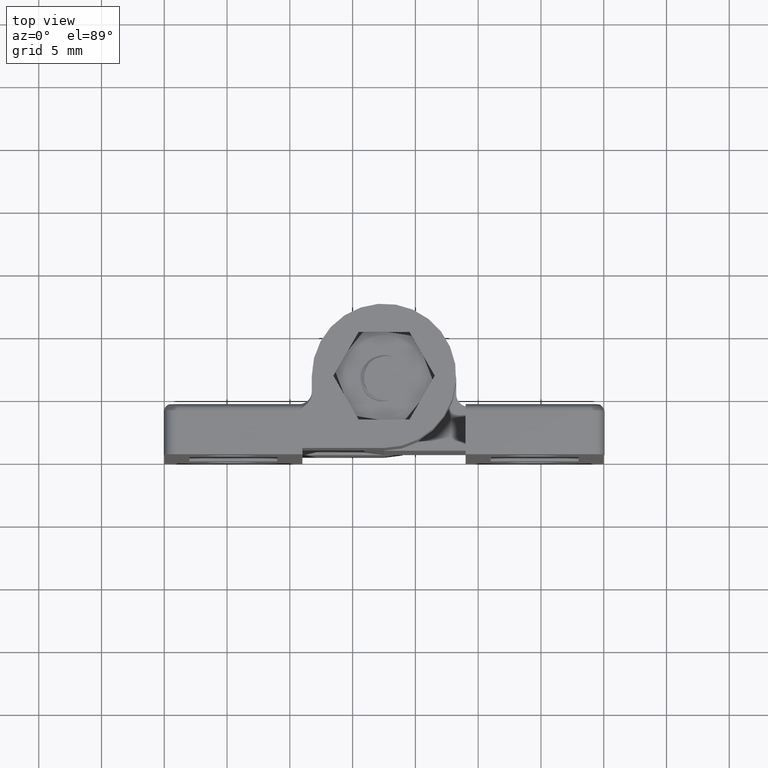
[diagram: clean part render]
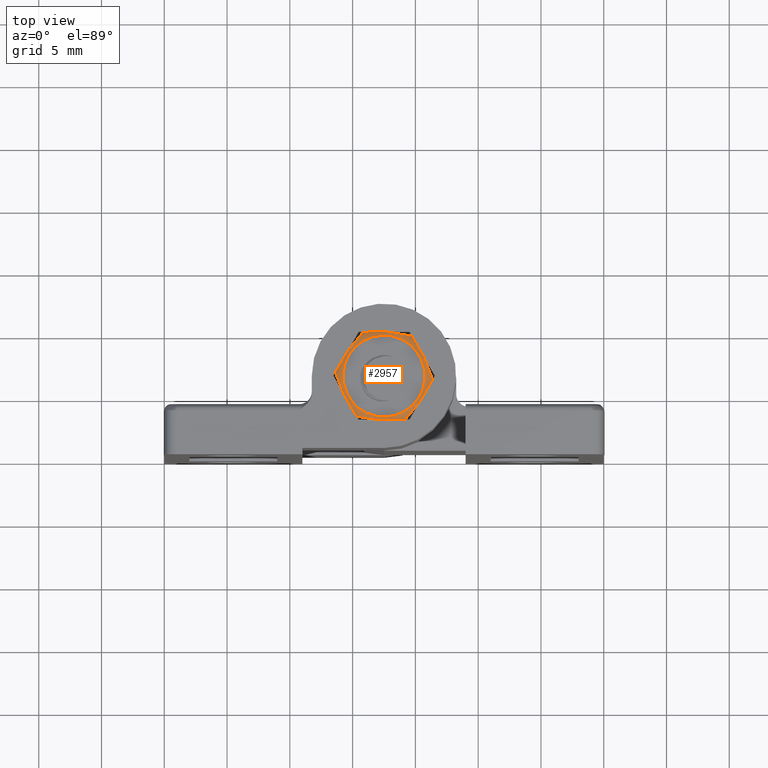
[diagram: same view with one face highlighted and labeled with its STEP entity id]
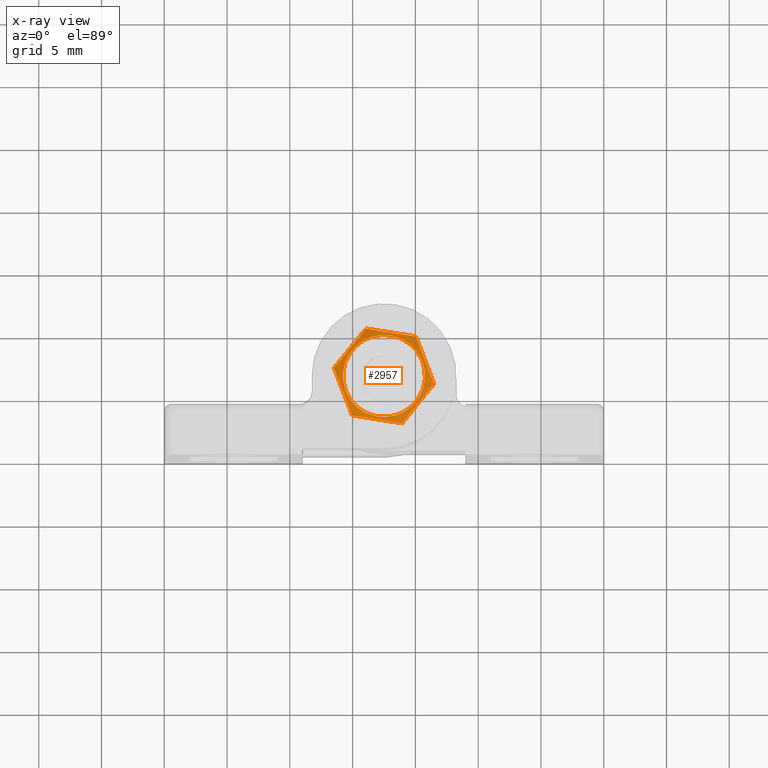
[diagram: x-ray of the same camera — body ghosted, the highlighted face saturated]
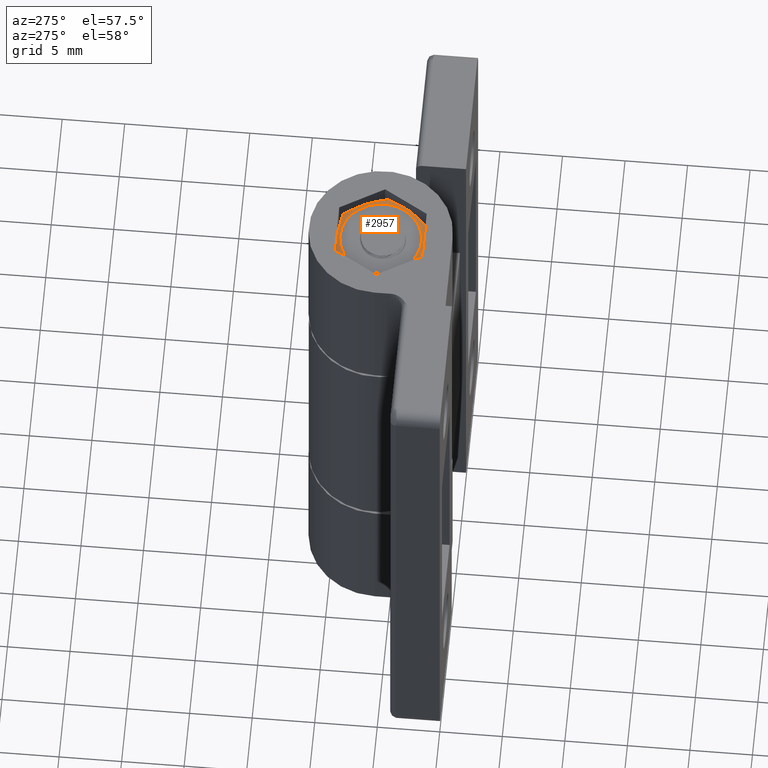
[diagram: same view with one face highlighted and labeled with its STEP entity id]
A machine part, top view. The second image highlights one B-rep face of the part: STEP entity #2957.
The next image is the same camera in x-ray: the body ghosted, the highlighted face saturated — about 0% of this face is hidden behind the body in this view.
A second angle (auxiliary view) of the same face is appended — the face is thin or edge-on in the first view.
In plain terms, the highlighted face is a freeform B-spline surface patch.
Its self-contained STEP definition (entity closure, byte-faithful):
#53=(
BOUNDED_SURFACE()
B_SPLINE_SURFACE(5,2,((#5416,#5417,#5418,#5419,#5420,#5421,#5422,#5423,
#5424),(#5425,#5426,#5427,#5428,#5429,#5430,#5431,#5432,#5433),(#5434,#5435,
#5436,#5437,#5438,#5439,#5440,#5441,#5442),(#5443,#5444,#5445,#5446,#5447,
#5448,#5449,#5450,#5451),(#5452,#5453,#5454,#5455,#5456,#5457,#5458,#5459,
#5460),(#5461,#5462,#5463,#5464,#5465,#5466,#5467,#5468,#5469),(#5470,#5471,
#5472,#5473,#5474,#5475,#5476,#5477,#5478),(#5479,#5480,#5481,#5482,#5483,
#5484,#5485,#5486,#5487),(#5488,#5489,#5490,#5491,#5492,#5493,#5494,#5495,
#5496),(#5497,#5498,#5499,#5500,#5501,#5502,#5503,#5504,#5505),(#5506,#5507,
#5508,#5509,#5510,#5511,#5512,#5513,#5514),(#5515,#5516,#5517,#5518,#5519,
#5520,#5521,#5522,#5523),(#5524,#5525,#5526,#5527,#5528,#5529,#5530,#5531,
#5532),(#5533,#5534,#5535,#5536,#5537,#5538,#5539,#5540,#5541),(#5542,#5543,
#5544,#5545,#5546,#5547,#5548,#5549,#5550)),.UNSPECIFIED.,.F.,.T.,.F.)
B_SPLINE_SURFACE_WITH_KNOTS((6,1,1,1,1,1,1,1,1,1,6),(3,2,2,2,3),(-1.,-0.9,
-0.8,-0.7,-0.6,-0.5,-0.4,-0.3,-0.2,-0.1,0.),(0.,1.5707963267949,3.14159265358979,
4.71238898038469,6.28318530717959),.UNSPECIFIED.)
GEOMETRIC_REPRESENTATION_ITEM()
RATIONAL_B_SPLINE_SURFACE(((1.,0.707106781186548,1.,0.707106781186548,1.,
0.707106781186548,1.,0.707106781186548,1.),(1.,0.707106781186548,1.,0.707106781186548,
1.,0.707106781186548,1.,0.707106781186548,1.),(1.,0.707106781186548,1.,
0.707106781186548,1.,0.707106781186548,1.,0.707106781186548,1.),(1.,0.707106781186548,
1.,0.707106781186548,1.,0.707106781186548,1.,0.707106781186548,1.),(1.,
0.707106781186548,1.,0.707106781186548,1.,0.707106781186548,1.,0.707106781186548,
1.),(1.,0.707106781186548,1.,0.707106781186548,1.,0.707106781186548,1.,
0.707106781186548,1.),(1.,0.707106781186548,1.,0.707106781186548,1.,0.707106781186548,
1.,0.707106781186548,1.),(1.,0.707106781186548,1.,0.707106781186548,1.,
0.707106781186548,1.,0.707106781186548,1.),(1.,0.707106781186548,1.,0.707106781186548,
1.,0.707106781186548,1.,0.707106781186548,1.),(1.,0.707106781186548,1.,
0.707106781186548,1.,0.707106781186548,1.,0.707106781186548,1.),(1.,0.707106781186548,
1.,0.707106781186548,1.,0.707106781186548,1.,0.707106781186548,1.),(1.,
0.707106781186548,1.,0.707106781186548,1.,0.707106781186548,1.,0.707106781186548,
1.),(1.,0.707106781186548,1.,0.707106781186548,1.,0.707106781186548,1.,
0.707106781186548,1.),(1.,0.707106781186548,1.,0.707106781186548,1.,0.707106781186548,
1.,0.707106781186548,1.),(1.,0.707106781186548,1.,0.707106781186548,1.,
0.707106781186548,1.,0.707106781186548,1.)))
REPRESENTATION_ITEM('')
SURFACE()
);
#83=B_SPLINE_CURVE_WITH_KNOTS('',3,(#5553,#5554,#5555,#5556,#5557,#5558,
#5559,#5560,#5561,#5562,#5563,#5564,#5565,#5566,#5567,#5568,#5569,#5570,
#5571,#5572,#5573,#5574,#5575,#5576,#5577,#5578,#5579,#5580,#5581,#5582),
 .UNSPECIFIED.,.F.,.F.,(4,2,2,2,2,2,2,2,2,2,2,2,2,2,4),(0.,0.0361791631435404,
0.0980929846163724,0.152777524309883,0.183605464778221,0.194273376338994,
0.203453418399297,0.209802915825388,0.216089708122447,0.22496312148691,
0.240825909856213,0.278685831894341,0.358332120632533,0.39851212730678,
0.427015684371787),.UNSPECIFIED.);
#84=B_SPLINE_CURVE_WITH_KNOTS('',3,(#5584,#5585,#5586,#5587,#5588,#5589,
#5590,#5591,#5592,#5593,#5594,#5595,#5596,#5597,#5598,#5599,#5600,#5601,
#5602,#5603,#5604,#5605,#5606,#5607,#5608,#5609,#5610,#5611,#5612,#5613),
 .UNSPECIFIED.,.F.,.F.,(4,2,2,2,2,2,2,2,2,2,2,2,2,2,4),(0.,0.0178727517397638,
0.0407514137350155,0.103592241858238,0.127521075474464,0.142994426421951,
0.151004948513163,0.15607701922255,0.160717207491714,0.166526232355823,
0.177832672054814,0.201032813446925,0.240820314357573,0.269308622697375,
0.285641254036583),.UNSPECIFIED.);
#85=B_SPLINE_CURVE_WITH_KNOTS('',3,(#5615,#5616,#5617,#5618,#5619,#5620,
#5621,#5622,#5623,#5624,#5625,#5626,#5627,#5628,#5629,#5630,#5631,#5632,
#5633,#5634,#5635,#5636,#5637,#5638,#5639,#5640,#5641,#5642,#5643,#5644),
 .UNSPECIFIED.,.F.,.F.,(4,2,2,2,2,2,2,2,2,2,2,2,2,2,4),(0.,0.0177312333647388,
0.0403754027847921,0.102618306332989,0.132370027721276,0.145311478476328,
0.152003507958347,0.156346903101656,0.160435423545265,0.165784576177388,
0.177402287248613,0.202166904158735,0.254633195591348,0.282005430420028,
0.301284590656105),.UNSPECIFIED.);
#86=B_SPLINE_CURVE_WITH_KNOTS('',3,(#5646,#5647,#5648,#5649,#5650,#5651,
#5652,#5653,#5654,#5655,#5656,#5657,#5658,#5659,#5660,#5661,#5662,#5663,
#5664,#5665,#5666,#5667,#5668,#5669,#5670,#5671,#5672,#5673,#5674,#5675),
 .UNSPECIFIED.,.F.,.F.,(4,2,2,2,2,2,2,2,2,2,2,2,2,2,4),(0.,0.0361791631492198,
0.0980929846610639,0.152777524395749,0.183605464887145,0.19427337645574,
0.203453418522495,0.209802915953191,0.216089708254858,0.22496312162592,
0.240825910007207,0.278685832073751,0.358332120872144,0.398512127584175,
0.42701568467521),.UNSPECIFIED.);
#87=B_SPLINE_CURVE_WITH_KNOTS('',3,(#5677,#5678,#5679,#5680,#5681,#5682,
#5683,#5684,#5685,#5686,#5687,#5688,#5689,#5690,#5691,#5692,#5693,#5694,
#5695,#5696,#5697,#5698,#5699,#5700,#5701,#5702,#5703,#5704,#5705,#5706),
 .UNSPECIFIED.,.F.,.F.,(4,2,2,2,2,2,2,2,2,2,2,2,2,2,4),(0.,0.0178727517388598,
0.0407514137326139,0.103592241850037,0.127521075468826,0.142994426417439,
0.151004948509051,0.156077019218657,0.160717207487457,0.166526232350677,
0.177832672047503,0.201032813434876,0.240820314337352,0.269308622684778,
0.285641254026599),.UNSPECIFIED.);
#88=B_SPLINE_CURVE_WITH_KNOTS('',3,(#5707,#5708,#5709,#5710,#5711,#5712,
#5713,#5714,#5715,#5716,#5717,#5718,#5719,#5720,#5721,#5722,#5723,#5724,
#5725,#5726,#5727,#5728,#5729,#5730,#5731,#5732,#5733,#5734,#5735,#5736),
 .UNSPECIFIED.,.F.,.F.,(4,2,2,2,2,2,2,2,2,2,2,2,2,2,4),(0.,0.017731233365268,
0.0403754027861674,0.102618306337743,0.132370027724714,0.145311478479343,
0.152003507961199,0.156346903104606,0.16043542354912,0.165784576182606,
0.17740228725694,0.202166904173949,0.254633195620854,0.282005430449203,
0.301284590686286),.UNSPECIFIED.);
#89=B_SPLINE_CURVE_WITH_KNOTS('',3,(#5737,#5738,#5739,#5740),
 .UNSPECIFIED.,.F.,.F.,(4,4),(0.,1.),.UNSPECIFIED.);
#469=FACE_OUTER_BOUND('',#603,.T.);
#603=EDGE_LOOP('',(#2222,#2223,#2224,#2225,#2226,#2227,#2228,#2229,#2230));
#1026=CIRCLE('',#3111,3.26394940457377);
#1170=VERTEX_POINT('',#5414);
#1171=VERTEX_POINT('',#5551);
#1172=VERTEX_POINT('',#5552);
#1173=VERTEX_POINT('',#5583);
#1174=VERTEX_POINT('',#5614);
#1175=VERTEX_POINT('',#5645);
#1176=VERTEX_POINT('',#5676);
#1603=EDGE_CURVE('',#1170,#1170,#1026,.T.);
#1604=EDGE_CURVE('',#1171,#1172,#83,.T.);
#1605=EDGE_CURVE('',#1173,#1171,#84,.T.);
#1606=EDGE_CURVE('',#1174,#1173,#85,.T.);
#1607=EDGE_CURVE('',#1175,#1174,#86,.T.);
#1608=EDGE_CURVE('',#1176,#1175,#87,.T.);
#1609=EDGE_CURVE('',#1172,#1176,#88,.T.);
#1610=EDGE_CURVE('',#1170,#1172,#89,.T.);
#2222=ORIENTED_EDGE('',*,*,#1604,.F.);
#2223=ORIENTED_EDGE('',*,*,#1605,.F.);
#2224=ORIENTED_EDGE('',*,*,#1606,.F.);
#2225=ORIENTED_EDGE('',*,*,#1607,.F.);
#2226=ORIENTED_EDGE('',*,*,#1608,.F.);
#2227=ORIENTED_EDGE('',*,*,#1609,.F.);
#2228=ORIENTED_EDGE('',*,*,#1610,.F.);
#2229=ORIENTED_EDGE('',*,*,#1603,.F.);
#2230=ORIENTED_EDGE('',*,*,#1610,.T.);
#2957=ADVANCED_FACE('',(#469),#53,.F.);
#3111=AXIS2_PLACEMENT_3D('',#5415,#3478,#3479);
#3478=DIRECTION('center_axis',(-6.12323399573677E-17,-1.,0.));
#3479=DIRECTION('ref_axis',(1.,-6.12323399573677E-17,0.));
#5414=CARTESIAN_POINT('',(11.0139494045738,21.25,7.9));
#5415=CARTESIAN_POINT('Origin',(7.75,21.25,7.9));
#5416=CARTESIAN_POINT('Ctrl Pts',(11.7914518843274,21.6588882345793,7.9));
#5417=CARTESIAN_POINT('Ctrl Pts',(11.7914518843274,21.6588882345793,11.9414518843274));
#5418=CARTESIAN_POINT('Ctrl Pts',(7.75,21.6588882345793,11.9414518843274));
#5419=CARTESIAN_POINT('Ctrl Pts',(3.70854811567262,21.6588882345793,11.9414518843274));
#5420=CARTESIAN_POINT('Ctrl Pts',(3.70854811567262,21.6588882345793,7.9));
#5421=CARTESIAN_POINT('Ctrl Pts',(3.70854811567262,21.6588882345793,3.85854811567262));
#5422=CARTESIAN_POINT('Ctrl Pts',(7.75,21.6588882345793,3.85854811567262));
#5423=CARTESIAN_POINT('Ctrl Pts',(11.7914518843274,21.6588882345793,3.85854811567262));
#5424=CARTESIAN_POINT('Ctrl Pts',(11.7914518843274,21.6588882345793,7.9));
#5425=CARTESIAN_POINT('Ctrl Pts',(11.784398007902,21.6464300623584,7.9));
#5426=CARTESIAN_POINT('Ctrl Pts',(11.784398007902,21.6464300623584,11.934398007902));
#5427=CARTESIAN_POINT('Ctrl Pts',(7.75,21.6464300623584,11.934398007902));
#5428=CARTESIAN_POINT('Ctrl Pts',(3.715601992098,21.6464300623584,11.934398007902));
#5429=CARTESIAN_POINT('Ctrl Pts',(3.715601992098,21.6464300623584,7.9));
#5430=CARTESIAN_POINT('Ctrl Pts',(3.715601992098,21.6464300623584,3.865601992098));
#5431=CARTESIAN_POINT('Ctrl Pts',(7.75,21.6464300623584,3.865601992098));
#5432=CARTESIAN_POINT('Ctrl Pts',(11.784398007902,21.6464300623584,3.865601992098));
#5433=CARTESIAN_POINT('Ctrl Pts',(11.784398007902,21.6464300623584,7.9));
#5434=CARTESIAN_POINT('Ctrl Pts',(11.7695391136558,21.621892146089,7.9));
#5435=CARTESIAN_POINT('Ctrl Pts',(11.7695391136558,21.621892146089,11.9195391136558));
#5436=CARTESIAN_POINT('Ctrl Pts',(7.75,21.621892146089,11.9195391136558));
#5437=CARTESIAN_POINT('Ctrl Pts',(3.73046088634421,21.621892146089,11.9195391136558));
#5438=CARTESIAN_POINT('Ctrl Pts',(3.73046088634421,21.621892146089,7.9));
#5439=CARTESIAN_POINT('Ctrl Pts',(3.73046088634421,21.621892146089,3.88046088634421));
#5440=CARTESIAN_POINT('Ctrl Pts',(7.75,21.621892146089,3.88046088634421));
#5441=CARTESIAN_POINT('Ctrl Pts',(11.7695391136558,21.621892146089,3.88046088634421));
#5442=CARTESIAN_POINT('Ctrl Pts',(11.7695391136558,21.621892146089,7.9));
#5443=CARTESIAN_POINT('Ctrl Pts',(11.7449973683031,21.5862205460238,7.9));
#5444=CARTESIAN_POINT('Ctrl Pts',(11.7449973683031,21.5862205460238,11.8949973683031));
#5445=CARTESIAN_POINT('Ctrl Pts',(7.75,21.5862205460238,11.8949973683031));
#5446=CARTESIAN_POINT('Ctrl Pts',(3.7550026316969,21.5862205460238,11.8949973683031));
#5447=CARTESIAN_POINT('Ctrl Pts',(3.7550026316969,21.5862205460238,7.9));
#5448=CARTESIAN_POINT('Ctrl Pts',(3.7550026316969,21.5862205460238,3.90500263169691));
#5449=CARTESIAN_POINT('Ctrl Pts',(7.75,21.5862205460238,3.90500263169691));
#5450=CARTESIAN_POINT('Ctrl Pts',(11.7449973683031,21.5862205460238,3.90500263169691));
#5451=CARTESIAN_POINT('Ctrl Pts',(11.7449973683031,21.5862205460238,7.9));
#5452=CARTESIAN_POINT('Ctrl Pts',(11.7076939138227,21.5409664036936,7.9));
#5453=CARTESIAN_POINT('Ctrl Pts',(11.7076939138227,21.5409664036936,11.8576939138227));
#5454=CARTESIAN_POINT('Ctrl Pts',(7.75,21.5409664036936,11.8576939138227));
#5455=CARTESIAN_POINT('Ctrl Pts',(3.79230608617728,21.5409664036936,11.8576939138227));
#5456=CARTESIAN_POINT('Ctrl Pts',(3.79230608617727,21.5409664036936,7.9));
#5457=CARTESIAN_POINT('Ctrl Pts',(3.79230608617728,21.5409664036936,3.94230608617728));
#5458=CARTESIAN_POINT('Ctrl Pts',(7.75,21.5409664036936,3.94230608617728));
#5459=CARTESIAN_POINT('Ctrl Pts',(11.7076939138227,21.5409664036936,3.94230608617728));
#5460=CARTESIAN_POINT('Ctrl Pts',(11.7076939138227,21.5409664036936,7.9));
#5461=CARTESIAN_POINT('Ctrl Pts',(11.6529192580733,21.4885023809097,7.9));
#5462=CARTESIAN_POINT('Ctrl Pts',(11.6529192580733,21.4885023809097,11.8029192580733));
#5463=CARTESIAN_POINT('Ctrl Pts',(7.75,21.4885023809097,11.8029192580733));
#5464=CARTESIAN_POINT('Ctrl Pts',(3.84708074192671,21.4885023809097,11.8029192580733));
#5465=CARTESIAN_POINT('Ctrl Pts',(3.8470807419267,21.4885023809097,7.9));
#5466=CARTESIAN_POINT('Ctrl Pts',(3.84708074192671,21.4885023809097,3.99708074192671));
#5467=CARTESIAN_POINT('Ctrl Pts',(7.75,21.4885023809097,3.99708074192671));
#5468=CARTESIAN_POINT('Ctrl Pts',(11.6529192580733,21.4885023809097,3.99708074192671));
#5469=CARTESIAN_POINT('Ctrl Pts',(11.6529192580733,21.4885023809097,7.9));
#5470=CARTESIAN_POINT('Ctrl Pts',(11.5893031551431,21.440492716144,7.9));
#5471=CARTESIAN_POINT('Ctrl Pts',(11.5893031551431,21.440492716144,11.7393031551431));
#5472=CARTESIAN_POINT('Ctrl Pts',(7.75,21.440492716144,11.7393031551431));
#5473=CARTESIAN_POINT('Ctrl Pts',(3.91069684485689,21.440492716144,11.7393031551431));
#5474=CARTESIAN_POINT('Ctrl Pts',(3.91069684485689,21.440492716144,7.9));
#5475=CARTESIAN_POINT('Ctrl Pts',(3.91069684485689,21.440492716144,4.06069684485689));
#5476=CARTESIAN_POINT('Ctrl Pts',(7.75,21.440492716144,4.06069684485689));
#5477=CARTESIAN_POINT('Ctrl Pts',(11.5893031551431,21.440492716144,4.06069684485689));
#5478=CARTESIAN_POINT('Ctrl Pts',(11.5893031551431,21.440492716144,7.9));
#5479=CARTESIAN_POINT('Ctrl Pts',(11.5161733580858,21.3972760902157,7.9));
#5480=CARTESIAN_POINT('Ctrl Pts',(11.5161733580858,21.3972760902157,11.6661733580858));
#5481=CARTESIAN_POINT('Ctrl Pts',(7.75,21.3972760902157,11.6661733580858));
#5482=CARTESIAN_POINT('Ctrl Pts',(3.98382664191424,21.3972760902157,11.6661733580858));
#5483=CARTESIAN_POINT('Ctrl Pts',(3.98382664191424,21.3972760902157,7.9));
#5484=CARTESIAN_POINT('Ctrl Pts',(3.98382664191424,21.3972760902157,4.13382664191424));
#5485=CARTESIAN_POINT('Ctrl Pts',(7.75,21.3972760902157,4.13382664191424));
#5486=CARTESIAN_POINT('Ctrl Pts',(11.5161733580858,21.3972760902157,4.13382664191424));
#5487=CARTESIAN_POINT('Ctrl Pts',(11.5161733580858,21.3972760902157,7.9));
#5488=CARTESIAN_POINT('Ctrl Pts',(11.4332546478185,21.358991159648,7.9));
#5489=CARTESIAN_POINT('Ctrl Pts',(11.4332546478185,21.358991159648,11.5832546478185));
#5490=CARTESIAN_POINT('Ctrl Pts',(7.75,21.358991159648,11.5832546478185));
#5491=CARTESIAN_POINT('Ctrl Pts',(4.06674535218149,21.358991159648,11.5832546478185));
#5492=CARTESIAN_POINT('Ctrl Pts',(4.06674535218149,21.358991159648,7.9));
#5493=CARTESIAN_POINT('Ctrl Pts',(4.06674535218149,21.358991159648,4.21674535218149));
#5494=CARTESIAN_POINT('Ctrl Pts',(7.75,21.358991159648,4.21674535218149));
#5495=CARTESIAN_POINT('Ctrl Pts',(11.4332546478185,21.358991159648,4.21674535218149));
#5496=CARTESIAN_POINT('Ctrl Pts',(11.4332546478185,21.358991159648,7.9));
#5497=CARTESIAN_POINT('Ctrl Pts',(11.3410357044332,21.3253917253695,7.9));
#5498=CARTESIAN_POINT('Ctrl Pts',(11.3410357044332,21.3253917253695,11.4910357044332));
#5499=CARTESIAN_POINT('Ctrl Pts',(7.75,21.3253917253695,11.4910357044332));
#5500=CARTESIAN_POINT('Ctrl Pts',(4.15896429556675,21.3253917253695,11.4910357044332));
#5501=CARTESIAN_POINT('Ctrl Pts',(4.15896429556675,21.3253917253695,7.9));
#5502=CARTESIAN_POINT('Ctrl Pts',(4.15896429556675,21.3253917253695,4.30896429556675));
#5503=CARTESIAN_POINT('Ctrl Pts',(7.75,21.3253917253695,4.30896429556675));
#5504=CARTESIAN_POINT('Ctrl Pts',(11.3410357044332,21.3253917253695,4.30896429556675));
#5505=CARTESIAN_POINT('Ctrl Pts',(11.3410357044332,21.3253917253695,7.9));
#5506=CARTESIAN_POINT('Ctrl Pts',(11.2402615285082,21.2961024529773,7.9));
#5507=CARTESIAN_POINT('Ctrl Pts',(11.2402615285082,21.2961024529773,11.3902615285082));
#5508=CARTESIAN_POINT('Ctrl Pts',(7.75,21.2961024529773,11.3902615285082));
#5509=CARTESIAN_POINT('Ctrl Pts',(4.25973847149181,21.2961024529773,11.3902615285082));
#5510=CARTESIAN_POINT('Ctrl Pts',(4.25973847149181,21.2961024529773,7.9));
#5511=CARTESIAN_POINT('Ctrl Pts',(4.25973847149181,21.2961024529773,4.40973847149181));
#5512=CARTESIAN_POINT('Ctrl Pts',(7.75,21.2961024529773,4.40973847149181));
#5513=CARTESIAN_POINT('Ctrl Pts',(11.2402615285082,21.2961024529773,4.40973847149181));
#5514=CARTESIAN_POINT('Ctrl Pts',(11.2402615285082,21.2961024529773,7.9));
#5515=CARTESIAN_POINT('Ctrl Pts',(11.1533808855747,21.2758255052602,7.9));
#5516=CARTESIAN_POINT('Ctrl Pts',(11.1533808855747,21.2758255052602,11.3033808855747));
#5517=CARTESIAN_POINT('Ctrl Pts',(7.75,21.2758255052602,11.3033808855747));
#5518=CARTESIAN_POINT('Ctrl Pts',(4.34661911442531,21.2758255052602,11.3033808855747));
#5519=CARTESIAN_POINT('Ctrl Pts',(4.34661911442531,21.2758255052602,7.9));
#5520=CARTESIAN_POINT('Ctrl Pts',(4.34661911442531,21.2758255052602,4.49661911442531));
#5521=CARTESIAN_POINT('Ctrl Pts',(7.75,21.2758255052602,4.49661911442531));
#5522=CARTESIAN_POINT('Ctrl Pts',(11.1533808855747,21.2758255052602,4.49661911442531));
#5523=CARTESIAN_POINT('Ctrl Pts',(11.1533808855747,21.2758255052602,7.9));
#5524=CARTESIAN_POINT('Ctrl Pts',(11.0849255034527,21.2622777788149,7.9));
#5525=CARTESIAN_POINT('Ctrl Pts',(11.0849255034527,21.2622777788149,11.2349255034527));
#5526=CARTESIAN_POINT('Ctrl Pts',(7.75,21.2622777788149,11.2349255034527));
#5527=CARTESIAN_POINT('Ctrl Pts',(4.41507449654731,21.2622777788149,11.2349255034527));
#5528=CARTESIAN_POINT('Ctrl Pts',(4.41507449654731,21.2622777788149,7.9));
#5529=CARTESIAN_POINT('Ctrl Pts',(4.41507449654731,21.2622777788149,4.56507449654732));
#5530=CARTESIAN_POINT('Ctrl Pts',(7.75,21.2622777788149,4.56507449654731));
#5531=CARTESIAN_POINT('Ctrl Pts',(11.0849255034527,21.2622777788149,4.56507449654732));
#5532=CARTESIAN_POINT('Ctrl Pts',(11.0849255034527,21.2622777788149,7.9));
#5533=CARTESIAN_POINT('Ctrl Pts',(11.037848182476,21.2539716405001,7.9));
#5534=CARTESIAN_POINT('Ctrl Pts',(11.037848182476,21.2539716405001,11.187848182476));
#5535=CARTESIAN_POINT('Ctrl Pts',(7.75,21.2539716405001,11.187848182476));
#5536=CARTESIAN_POINT('Ctrl Pts',(4.46215181752398,21.2539716405001,11.187848182476));
#5537=CARTESIAN_POINT('Ctrl Pts',(4.46215181752398,21.2539716405001,7.9));
#5538=CARTESIAN_POINT('Ctrl Pts',(4.46215181752398,21.2539716405001,4.61215181752398));
#5539=CARTESIAN_POINT('Ctrl Pts',(7.75,21.2539716405001,4.61215181752398));
#5540=CARTESIAN_POINT('Ctrl Pts',(11.037848182476,21.2539716405001,4.61215181752398));
#5541=CARTESIAN_POINT('Ctrl Pts',(11.037848182476,21.2539716405001,7.9));
#5542=CARTESIAN_POINT('Ctrl Pts',(11.0139494045738,21.25,7.9));
#5543=CARTESIAN_POINT('Ctrl Pts',(11.0139494045738,21.25,11.1639494045738));
#5544=CARTESIAN_POINT('Ctrl Pts',(7.75,21.25,11.1639494045738));
#5545=CARTESIAN_POINT('Ctrl Pts',(4.48605059542622,21.25,11.1639494045738));
#5546=CARTESIAN_POINT('Ctrl Pts',(4.48605059542622,21.25,7.9));
#5547=CARTESIAN_POINT('Ctrl Pts',(4.48605059542622,21.25,4.63605059542622));
#5548=CARTESIAN_POINT('Ctrl Pts',(7.75,21.25,4.63605059542622));
#5549=CARTESIAN_POINT('Ctrl Pts',(11.0139494045738,21.25,4.63605059542622));
#5550=CARTESIAN_POINT('Ctrl Pts',(11.0139494045738,21.25,7.9));
#5551=CARTESIAN_POINT('',(9.77072594216368,21.6588882345793,11.4));
#5552=CARTESIAN_POINT('',(11.7914518843274,21.6588882345793,7.9));
#5553=CARTESIAN_POINT('Ctrl Pts',(9.77072594216371,21.6588882345793,11.4));
#5554=CARTESIAN_POINT('Ctrl Pts',(9.81592397473511,21.57906193201,11.3217147111842));
#5555=CARTESIAN_POINT('Ctrl Pts',(9.87118274317652,21.5274383845264,11.22600371668));
#5556=CARTESIAN_POINT('Ctrl Pts',(9.98152390049663,21.441779341404,11.0348872260356));
#5557=CARTESIAN_POINT('Ctrl Pts',(10.0676309470139,21.4004957177279,10.885745446589));
#5558=CARTESIAN_POINT('Ctrl Pts',(10.2735846424176,21.3418659281839,10.5290231821433));
#5559=CARTESIAN_POINT('Ctrl Pts',(10.3783850765811,21.3252638533109,10.3475035055058));
#5560=CARTESIAN_POINT('Ctrl Pts',(10.529994882391,21.309573660684,10.0849076189174));
#5561=CARTESIAN_POINT('Ctrl Pts',(10.5854023700776,21.3056690613365,9.98893903512438));
#5562=CARTESIAN_POINT('Ctrl Pts',(10.6590467974257,21.3024235170682,9.86138314526314));
#5563=CARTESIAN_POINT('Ctrl Pts',(10.6780064685417,21.3017631197675,9.82854403159478));
#5564=CARTESIAN_POINT('Ctrl Pts',(10.7132369890408,21.3008488138133,9.76752298011325));
#5565=CARTESIAN_POINT('Ctrl Pts',(10.7295478923257,21.3005501794695,9.73927166690722));
#5566=CARTESIAN_POINT('Ctrl Pts',(10.7571150423986,21.3002523561256,9.691523962361));
#5567=CARTESIAN_POINT('Ctrl Pts',(10.768391473225,21.3001890953209,9.67199261124163));
#5568=CARTESIAN_POINT('Ctrl Pts',(10.7908230172108,21.3001793030322,9.63314003736604));
#5569=CARTESIAN_POINT('Ctrl Pts',(10.801987999395,21.30023162068,9.61380172095745));
#5570=CARTESIAN_POINT('Ctrl Pts',(10.8288995968052,21.3004960199192,9.56718946693014));
#5571=CARTESIAN_POINT('Ctrl Pts',(10.8446647655374,21.30076520901,9.53988339369603));
#5572=CARTESIAN_POINT('Ctrl Pts',(10.8885724378726,21.3018385399964,9.46383307436931));
#5573=CARTESIAN_POINT('Ctrl Pts',(10.9168102907333,21.3029001480702,9.41492367851806));
#5574=CARTESIAN_POINT('Ctrl Pts',(11.012146034245,21.3078203415244,9.24979732697835));
#5575=CARTESIAN_POINT('Ctrl Pts',(11.0807508383574,21.3136151507208,9.13097032061232));
#5576=CARTESIAN_POINT('Ctrl Pts',(11.2889540768214,21.340671787235,8.77035173329244));
#5577=CARTESIAN_POINT('Ctrl Pts',(11.4204480315883,21.3712021073083,8.54259752274795));
#5578=CARTESIAN_POINT('Ctrl Pts',(11.5833197769572,21.4478602023429,8.26049538465155));
#5579=CARTESIAN_POINT('Ctrl Pts',(11.6394456776199,21.4822143775647,8.16328247308323));
#5580=CARTESIAN_POINT('Ctrl Pts',(11.7265085026687,21.5640322184996,8.01248523664822));
#5581=CARTESIAN_POINT('Ctrl Pts',(11.7616797472332,21.6063063081411,7.95156685409711));
#5582=CARTESIAN_POINT('Ctrl Pts',(11.7914518843274,21.6588882345793,7.9));
#5583=CARTESIAN_POINT('',(5.72927405783631,21.6588882345793,11.4));
#5584=CARTESIAN_POINT('Ctrl Pts',(5.72927405783629,21.6588882345793,11.4));
#5585=CARTESIAN_POINT('Ctrl Pts',(5.77393032653268,21.619453500214,11.4));
#5586=CARTESIAN_POINT('Ctrl Pts',(5.82460847976037,21.5858964932852,11.4));
#5587=CARTESIAN_POINT('Ctrl Pts',(5.94435877701048,21.5210567185451,11.4));
#5588=CARTESIAN_POINT('Ctrl Pts',(6.01676387525391,21.4918719950676,11.3999999999392));
#5589=CARTESIAN_POINT('Ctrl Pts',(6.28908689157558,21.4027679342697,11.3999999999392));
#5590=CARTESIAN_POINT('Ctrl Pts',(6.54809279136657,21.3594357734599,11.4));
#5591=CARTESIAN_POINT('Ctrl Pts',(7.01090438950476,21.3216503306264,11.4));
#5592=CARTESIAN_POINT('Ctrl Pts',(7.14168893159103,21.3142912431853,11.4));
#5593=CARTESIAN_POINT('Ctrl Pts',(7.35230784565627,21.3060570788756,11.4));
#5594=CARTESIAN_POINT('Ctrl Pts',(7.43561900913173,21.3037392295579,11.4));
#5595=CARTESIAN_POINT('Ctrl Pts',(7.56122094228848,21.3014810724443,11.4));
#5596=CARTESIAN_POINT('Ctrl Pts',(7.60413931665047,21.3009292329224,11.3999999999999));
#5597=CARTESIAN_POINT('Ctrl Pts',(7.67411968751936,21.3003759932851,11.3999999999999));
#5598=CARTESIAN_POINT('Ctrl Pts',(7.70126898930663,21.3002465714282,11.4));
#5599=CARTESIAN_POINT('Ctrl Pts',(7.75322258020473,21.3001606809378,11.4));
#5600=CARTESIAN_POINT('Ctrl Pts',(7.77805772151934,21.3001903775223,11.4));
#5601=CARTESIAN_POINT('Ctrl Pts',(7.8339531063211,21.3004167485389,11.4));
#5602=CARTESIAN_POINT('Ctrl Pts',(7.86505302786193,21.3006537914893,11.4));
#5603=CARTESIAN_POINT('Ctrl Pts',(7.95660281470843,21.3016833737617,11.4));
#5604=CARTESIAN_POINT('Ctrl Pts',(8.01728090216505,21.3027927532978,11.4));
#5605=CARTESIAN_POINT('Ctrl Pts',(8.20180647261786,21.3075543540912,11.4));
#5606=CARTESIAN_POINT('Ctrl Pts',(8.32805226972717,21.3127336720562,11.4));
#5607=CARTESIAN_POINT('Ctrl Pts',(8.66441711059276,21.3333844435937,11.4));
#5608=CARTESIAN_POINT('Ctrl Pts',(8.90452290523326,21.3556866826569,11.4000000000024));
#5609=CARTESIAN_POINT('Ctrl Pts',(9.26863070979031,21.4235235539861,11.4000000000024));
#5610=CARTESIAN_POINT('Ctrl Pts',(9.40875262296817,21.4608576993163,11.4));
#5611=CARTESIAN_POINT('Ctrl Pts',(9.60053195647974,21.5429932900345,11.4));
#5612=CARTESIAN_POINT('Ctrl Pts',(9.6925232690743,21.5898295843615,11.4));
#5613=CARTESIAN_POINT('Ctrl Pts',(9.7707259421637,21.6588882345793,11.4));
#5614=CARTESIAN_POINT('',(3.70854811567262,21.6588882345793,7.9));
#5615=CARTESIAN_POINT('Ctrl Pts',(3.70854811567262,21.6588882345793,7.9));
#5616=CARTESIAN_POINT('Ctrl Pts',(3.73069945344597,21.6197657486919,7.93836724247906));
#5617=CARTESIAN_POINT('Ctrl Pts',(3.75581343967075,21.5864303872455,7.98186594260096));
#5618=CARTESIAN_POINT('Ctrl Pts',(3.81508653093185,21.5220205699933,8.08452994818685));
#5619=CARTESIAN_POINT('Ctrl Pts',(3.850871125102,21.49298971797,8.1465106834178));
#5620=CARTESIAN_POINT('Ctrl Pts',(3.98560565062018,21.4041349127373,8.37987772714896));
#5621=CARTESIAN_POINT('Ctrl Pts',(4.1136181442096,21.3606834250823,8.60160187004942));
#5622=CARTESIAN_POINT('Ctrl Pts',(4.35911285804696,21.3198143777772,9.02681118740533));
#5623=CARTESIAN_POINT('Ctrl Pts',(4.44141320164202,21.3113313415228,9.16935956399233));
#5624=CARTESIAN_POINT('Ctrl Pts',(4.55560758279295,21.3041192573288,9.36715003408463));
#5625=CARTESIAN_POINT('Ctrl Pts',(4.59039105278708,21.3025440762532,9.42739677137742));
#5626=CARTESIAN_POINT('Ctrl Pts',(4.64292604929443,21.3010200078694,9.51839005450361));
#5627=CARTESIAN_POINT('Ctrl Pts',(4.66085401422959,21.300651277653,9.54944220064813));
#5628=CARTESIAN_POINT('Ctrl Pts',(4.6903849729744,21.3002877061661,9.60059132159036));
#5629=CARTESIAN_POINT('Ctrl Pts',(4.7020136499389,21.3002068886959,9.62073278091768));
#5630=CARTESIAN_POINT('Ctrl Pts',(4.72457799848154,21.3001704556346,9.65981537903324));
#5631=CARTESIAN_POINT('Ctrl Pts',(4.73552374169028,21.3002077561101,9.67877396239744));
#5632=CARTESIAN_POINT('Ctrl Pts',(4.76077934608267,21.3004209550567,9.72251795238093));
#5633=CARTESIAN_POINT('Ctrl Pts',(4.77510405251498,21.300636195428,9.74732907172519));
#5634=CARTESIAN_POINT('Ctrl Pts',(4.8205058308068,21.301621282738,9.8259672584806));
#5635=CARTESIAN_POINT('Ctrl Pts',(4.85170274487832,21.3027489478436,9.88000189869183));
#5636=CARTESIAN_POINT('Ctrl Pts',(4.94903259887686,21.3077720555771,10.0485821509106));
#5637=CARTESIAN_POINT('Ctrl Pts',(5.01663747879775,21.3134529147938,10.1656772377731));
#5638=CARTESIAN_POINT('Ctrl Pts',(5.22293251090263,21.339989020932,10.5229907147278));
#5639=CARTESIAN_POINT('Ctrl Pts',(5.35289628328218,21.3698836122256,10.7480945716326));
#5640=CARTESIAN_POINT('Ctrl Pts',(5.51626612475542,21.4449861798741,11.0310594374887));
#5641=CARTESIAN_POINT('Ctrl Pts',(5.57399961860539,21.4796196738485,11.1310567821353));
#5642=CARTESIAN_POINT('Ctrl Pts',(5.66311082954952,21.5625647927279,11.2854019270145));
#5643=CARTESIAN_POINT('Ctrl Pts',(5.69898731585173,21.6053974410214,11.347541824087));
#5644=CARTESIAN_POINT('Ctrl Pts',(5.72927405783632,21.6588882345793,11.4));
#5645=CARTESIAN_POINT('',(5.72927405783631,21.6588882345793,4.4));
#5646=CARTESIAN_POINT('Ctrl Pts',(5.72927405783631,21.6588882345793,4.4));
#5647=CARTESIAN_POINT('Ctrl Pts',(5.68407602525787,21.5790619319973,4.47828528882802));
#5648=CARTESIAN_POINT('Ctrl Pts',(5.62881725680811,21.5274383845153,4.57399628334667));
#5649=CARTESIAN_POINT('Ctrl Pts',(5.51847609951309,21.4417793414101,4.76511277394759));
#5650=CARTESIAN_POINT('Ctrl Pts',(5.43236905300126,21.4004957177347,4.91425455338476));
#5651=CARTESIAN_POINT('Ctrl Pts',(5.22641535760226,21.3418659281874,5.27097681782239));
#5652=CARTESIAN_POINT('Ctrl Pts',(5.1216149234331,21.3252638533127,5.45249649446968));
#5653=CARTESIAN_POINT('Ctrl Pts',(4.97000511761718,21.3095736606846,5.71509238106852));
#5654=CARTESIAN_POINT('Ctrl Pts',(4.91459762992841,21.3056690613368,5.81106096486521));
#5655=CARTESIAN_POINT('Ctrl Pts',(4.84095320257799,21.3024235170683,5.93861685473045));
#5656=CARTESIAN_POINT('Ctrl Pts',(4.82199353146162,21.3017631197675,5.97145596839947));
#5657=CARTESIAN_POINT('Ctrl Pts',(4.78676301096134,21.3008488138133,6.03247701988305));
#5658=CARTESIAN_POINT('Ctrl Pts',(4.77045210767622,21.3005501794695,6.06072833308956));
#5659=CARTESIAN_POINT('Ctrl Pts',(4.74288495760219,21.3002523561256,6.10847603763766));
#5660=CARTESIAN_POINT('Ctrl Pts',(4.73160852677518,21.3001890953209,6.12800738875806));
#5661=CARTESIAN_POINT('Ctrl Pts',(4.70917698279124,21.3001793030322,6.16685996263047));
#5662=CARTESIAN_POINT('Ctrl Pts',(4.69801200060672,21.30023162068,6.18619827903966));
#5663=CARTESIAN_POINT('Ctrl Pts',(4.67110040319551,21.3004960199192,6.2328105330687));
#5664=CARTESIAN_POINT('Ctrl Pts',(4.65533523446409,21.30076520901,6.26011660630142));
#5665=CARTESIAN_POINT('Ctrl Pts',(4.61142756213072,21.3018385399963,6.33616692562491));
#5666=CARTESIAN_POINT('Ctrl Pts',(4.5831897092712,21.3029001480701,6.38507632147426));
#5667=CARTESIAN_POINT('Ctrl Pts',(4.48785396576346,21.3078203415238,6.55020267300702));
#5668=CARTESIAN_POINT('Ctrl Pts',(4.41924916165416,21.3136151507197,6.66902967936762));
#5669=CARTESIAN_POINT('Ctrl Pts',(4.21104592319852,21.3406717872314,7.02964826667317));
#5670=CARTESIAN_POINT('Ctrl Pts',(4.07955196844019,21.3712021073014,7.25740247720276));
#5671=CARTESIAN_POINT('Ctrl Pts',(3.91668022306869,21.4478602023275,7.53950461530363));
#5672=CARTESIAN_POINT('Ctrl Pts',(3.86055432239758,21.4822143775507,7.63671752688656));
#5673=CARTESIAN_POINT('Ctrl Pts',(3.77349149733755,21.564032218492,7.78751476334101));
#5674=CARTESIAN_POINT('Ctrl Pts',(3.73832025276928,21.6063063081367,7.84843314589868));
#5675=CARTESIAN_POINT('Ctrl Pts',(3.70854811567262,21.6588882345793,7.9));
#5676=CARTESIAN_POINT('',(9.77072594216369,21.6588882345793,4.4));
#5677=CARTESIAN_POINT('Ctrl Pts',(9.77072594216368,21.6588882345793,4.4));
#5678=CARTESIAN_POINT('Ctrl Pts',(9.72606967346958,21.6194535002159,4.4));
#5679=CARTESIAN_POINT('Ctrl Pts',(9.67539152024433,21.5858964932883,4.4));
#5680=CARTESIAN_POINT('Ctrl Pts',(9.55564122300098,21.5210567185506,4.4));
#5681=CARTESIAN_POINT('Ctrl Pts',(9.48323612476235,21.4918719950739,4.40000000006084));
#5682=CARTESIAN_POINT('Ctrl Pts',(9.21091310846282,21.4027679342794,4.40000000006084));
#5683=CARTESIAN_POINT('Ctrl Pts',(8.95190720869775,21.3594357734692,4.4));
#5684=CARTESIAN_POINT('Ctrl Pts',(8.48909561056938,21.3216503306309,4.4));
#5685=CARTESIAN_POINT('Ctrl Pts',(8.35831106846585,21.314291243188,4.4));
#5686=CARTESIAN_POINT('Ctrl Pts',(8.14769215437802,21.3060570788766,4.4));
#5687=CARTESIAN_POINT('Ctrl Pts',(8.06438099089528,21.3037392295585,4.4));
#5688=CARTESIAN_POINT('Ctrl Pts',(7.93877905772756,21.3014810724445,4.4));
#5689=CARTESIAN_POINT('Ctrl Pts',(7.89586068336246,21.3009292329225,4.40000000000009));
#5690=CARTESIAN_POINT('Ctrl Pts',(7.82588031248861,21.3003759932852,4.40000000000009));
#5691=CARTESIAN_POINT('Ctrl Pts',(7.79873101069952,21.3002465714283,4.4));
#5692=CARTESIAN_POINT('Ctrl Pts',(7.74677741980733,21.3001606809378,4.4));
#5693=CARTESIAN_POINT('Ctrl Pts',(7.72194227849074,21.3001903775222,4.40000000000002));
#5694=CARTESIAN_POINT('Ctrl Pts',(7.66604689368685,21.3004167485389,4.40000000000002));
#5695=CARTESIAN_POINT('Ctrl Pts',(7.63494697214808,21.3006537914892,4.4));
#5696=CARTESIAN_POINT('Ctrl Pts',(7.54339718530991,21.3016833737614,4.4));
#5697=CARTESIAN_POINT('Ctrl Pts',(7.48271909785948,21.3027927532973,4.4));
#5698=CARTESIAN_POINT('Ctrl Pts',(7.29819352742695,21.3075543540897,4.4));
#5699=CARTESIAN_POINT('Ctrl Pts',(7.17194773033296,21.3127336720535,4.4));
#5700=CARTESIAN_POINT('Ctrl Pts',(6.83558288950654,21.3333844435859,4.4));
#5701=CARTESIAN_POINT('Ctrl Pts',(6.59547709491043,21.3556866826419,4.39999999999759));
#5702=CARTESIAN_POINT('Ctrl Pts',(6.2313692903267,21.4235235539559,4.39999999999759));
#5703=CARTESIAN_POINT('Ctrl Pts',(6.09124737710957,21.460857699289,4.4));
#5704=CARTESIAN_POINT('Ctrl Pts',(5.89946804355859,21.5429932900147,4.4));
#5705=CARTESIAN_POINT('Ctrl Pts',(5.80747673093877,21.5898295843498,4.4));
#5706=CARTESIAN_POINT('Ctrl Pts',(5.72927405783631,21.6588882345793,4.4));
#5707=CARTESIAN_POINT('Ctrl Pts',(11.7914518843274,21.6588882345793,7.90000000000002));
#5708=CARTESIAN_POINT('Ctrl Pts',(11.7693005465534,21.6197657486907,7.86163275751977));
#5709=CARTESIAN_POINT('Ctrl Pts',(11.7441865603281,21.586430387244,7.81813405739702));
#5710=CARTESIAN_POINT('Ctrl Pts',(11.6849134690654,21.5220205699907,7.71547005180846));
#5711=CARTESIAN_POINT('Ctrl Pts',(11.6491288748942,21.492989717967,7.65348931657563));
#5712=CARTESIAN_POINT('Ctrl Pts',(11.5143943493701,21.4041349127323,7.42012227283415));
#5713=CARTESIAN_POINT('Ctrl Pts',(11.3863818557736,21.3606834250773,7.19839812992154));
#5714=CARTESIAN_POINT('Ctrl Pts',(11.1408871419341,21.3198143777751,6.77318881256193));
#5715=CARTESIAN_POINT('Ctrl Pts',(11.0585867983443,21.3113313415217,6.63064043598401));
#5716=CARTESIAN_POINT('Ctrl Pts',(10.9443924171997,21.3041192573284,6.43284996590266));
#5717=CARTESIAN_POINT('Ctrl Pts',(10.9096089472072,21.302544076253,6.37260322861277));
#5718=CARTESIAN_POINT('Ctrl Pts',(10.8570739507021,21.3010200078693,6.28160994549032));
#5719=CARTESIAN_POINT('Ctrl Pts',(10.8391459857675,21.300651277653,6.25055779934691));
#5720=CARTESIAN_POINT('Ctrl Pts',(10.8096150270233,21.3002877061661,6.19940867840567));
#5721=CARTESIAN_POINT('Ctrl Pts',(10.7979863500587,21.3002068886959,6.17926721907818));
#5722=CARTESIAN_POINT('Ctrl Pts',(10.7754220015151,21.3001704556346,6.14018462096102));
#5723=CARTESIAN_POINT('Ctrl Pts',(10.7644762583071,21.3002077561101,6.12122603759802));
#5724=CARTESIAN_POINT('Ctrl Pts',(10.7392206539158,21.3004209550567,6.07748204761646));
#5725=CARTESIAN_POINT('Ctrl Pts',(10.7248959474827,21.300636195428,6.05267092827087));
#5726=CARTESIAN_POINT('Ctrl Pts',(10.6794941691881,21.3016212827381,5.97403274151058));
#5727=CARTESIAN_POINT('Ctrl Pts',(10.6482972551147,21.3027489478438,5.91999810129612));
#5728=CARTESIAN_POINT('Ctrl Pts',(10.5509674011097,21.3077720555779,5.75141784906614));
#5729=CARTESIAN_POINT('Ctrl Pts',(10.4833625211839,21.3134529147954,5.63432276219509));
#5730=CARTESIAN_POINT('Ctrl Pts',(10.2770674890656,21.3399890209375,5.2770092852172));
#5731=CARTESIAN_POINT('Ctrl Pts',(10.1471037166728,21.3698836122365,5.05190542828947));
#5732=CARTESIAN_POINT('Ctrl Pts',(9.98373387520337,21.4449861798981,4.76894056243997));
#5733=CARTESIAN_POINT('Ctrl Pts',(9.92600038136695,21.4796196738703,4.66894321781684));
#5734=CARTESIAN_POINT('Ctrl Pts',(9.83688917043992,21.5625647927405,4.51459807296723));
#5735=CARTESIAN_POINT('Ctrl Pts',(9.80101268414368,21.6053974410294,4.4524581759051));
#5736=CARTESIAN_POINT('Ctrl Pts',(9.77072594216368,21.6588882345793,4.39999999999999));
#5737=CARTESIAN_POINT('Ctrl Pts',(11.0139494045738,21.25,7.9));
#5738=CARTESIAN_POINT('Ctrl Pts',(11.4122623696105,21.316194008335,7.9));
#5739=CARTESIAN_POINT('Ctrl Pts',(11.6738872772374,21.4512520308976,7.9));
#5740=CARTESIAN_POINT('Ctrl Pts',(11.7914518843274,21.6588882345793,7.9));